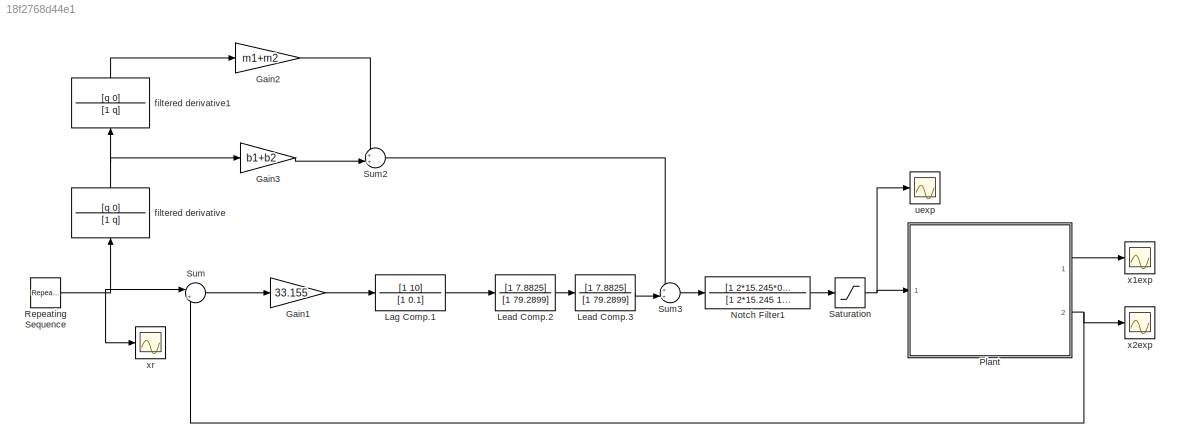
MODEL slx_18f2768d44e1
KIND model
CONFIG AbsTol = auto
CONFIG EnableMultiTasking = on
CONFIG FixedStep = 0.001
CONFIG MaxStep = auto
CONFIG MinStep = auto
CONFIG RelTol = 1e-3
CONFIG SampleTimeConstraint = Unconstrained
CONFIG SolverName = ode1
CONFIG StartTime = 0.0
CONFIG StopTime = inf
BLOCK [Gain] Gain1
  Gain = 33.155
BLOCK [Gain] Gain2
  Gain = m1+m2
BLOCK [Gain] Gain3
  Gain = b1+b2
BLOCK [TransferFcn] Lag Comp.1
  Denominator = [1 0.1]
  Numerator = [1 10]
BLOCK [TransferFcn] Lead Comp.2
  Denominator = [1 79.2899]
  Numerator = [1 7.8825]
BLOCK [TransferFcn] Lead Comp.3
  Denominator = [1 79.2899]
  Numerator = [1 7.8825]
BLOCK [TransferFcn] Notch Filter1
  Denominator = [1 2*15.245 15.245^2]
  Numerator = [1 2*15.245*0.707 15.245^2]
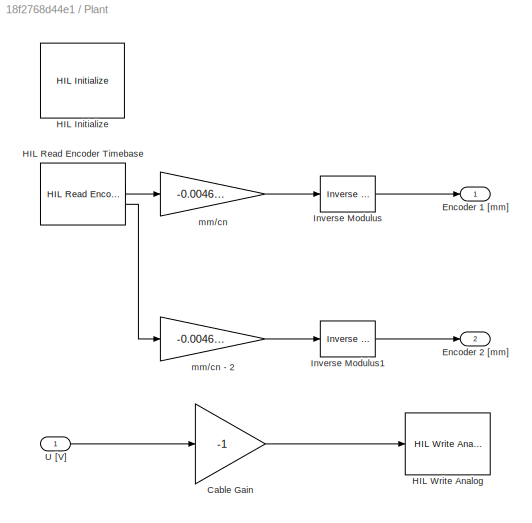
BLOCK [SubSystem] Plant
  Ports = [1, 2]
  RequestExecContextInheritance = off
BLOCK [Gain] Plant/Cable Gain
  Gain = -1
BLOCK [Outport] Plant/Encoder 1 [mm]
BLOCK [Outport] Plant/Encoder 2 [mm]
  Port = 2
BLOCK [Reference] Plant/HIL Initialize  REF=quarc_library/Data Acquisition/Generic/Configuration/HIL Initialize
  AttributesFormatString = %<object_name> (%<board_type>-%<board_number>)
  Ports = []
  Priority = -99
  SourceBlock = quarc_library/Data Acquisition/Generic/Configuration/HIL Initialize
  SourceProductName = QUARC Targets
  SourceType = HIL Initialize
  UserDataPersistent = on
BLOCK [Reference] Plant/HIL Read Encoder Timebase  REF=quarc_library/Data Acquisition/Generic/Timebases/HIL Read Encoder
Timebase
  AttributesFormatString = (%<object_name>)
  Ports = [0, 2]
  SourceBlock = quarc_library/Data Acquisition/Generic/Timebases/HIL Read Encoder\nTimebase
  SourceProductName = QUARC Targets
  SourceType = HIL Read Encoder Timebase
  UserDataPersistent = on
BLOCK [Reference] Plant/HIL Write Analog  REF=quarc_library/Data Acquisition/Generic/Immediate I//O/HIL Write Analog
  AttributesFormatString = (%<object_name>)
  Ports = [1]
  SourceBlock = quarc_library/Data Acquisition/Generic/Immediate I//O/HIL Write Analog
  SourceProductName = QUARC Targets
  SourceType = HIL Write Analog
  Tag = unassigned
  UserDataPersistent = on
BLOCK [Reference] Plant/Inverse Modulus  REF=quarc_library/Discontinuities/Inverse
Modulus
  Ports = [1, 1]
  SourceBlock = quarc_library/Discontinuities/Inverse\nModulus
  SourceProductName = QUARC Targets
  SourceType = Inverse Modulus
BLOCK [Reference] Plant/Inverse Modulus1  REF=quarc_library/Discontinuities/Inverse
Modulus
  Ports = [1, 1]
  SourceBlock = quarc_library/Discontinuities/Inverse\nModulus
  SourceProductName = QUARC Targets
  SourceType = Inverse Modulus
BLOCK [Inport] Plant/U [V]
BLOCK [Gain] Plant/mm//cn
  Gain = -0.0046592
BLOCK [Gain] Plant/mm//cn - 2
  Gain = -0.0046592
BLOCK [Reference] Repeating Sequence  REF=simulink/Sources/Repeating
Sequence
  Ports = [0, 1]
  SourceBlock = simulink/Sources/Repeating\nSequence
  SourceProductBaseCode = SL
  SourceType = Repeating table
BLOCK [Saturate] Saturation
  LowerLimit = -8
  UpperLimit = 8
BLOCK [Sum] Sum
  Inputs = |+-
  Ports = [2, 1]
BLOCK [Sum] Sum2
  Inputs = ++|
  Ports = [2, 1]
BLOCK [Sum] Sum3
  Inputs = ++|
  Ports = [2, 1]
BLOCK [TransferFcn] filtered derivative
  Denominator = [1 q]
  NameLocation = left
  Numerator = [q 0]
BLOCK [TransferFcn] filtered derivative1
  Denominator = [1 q]
  NameLocation = left
  Numerator = [q 0]
BLOCK [Scope] uexp
  Floating = off
  NumInputPorts = 1
  Ports = [1]
  ScopeSpecificationString = Simulink.scopes.TimeScopeBlockCfg('CurrentConfiguration', extmgr.ConfigurationSet(extmgr.Configuration('Core','General UI',true),extmgr.Configuration('Core','Source UI',true),extmgr.Configuration('Sources','WiredSimulink',true,'DataLoggingVariableName','uexp','DataLogging',true,'DataLoggingSaveFormat','Array'),extmgr.Configuration('Visuals','Time Domain',true,'SerializedDisplays',{struct('MinYLimR...<+1420ch>
BLOCK [Scope] x1exp
  Floating = off
  NumInputPorts = 1
  Ports = [1]
  ScopeSpecificationString = Simulink.scopes.TimeScopeBlockCfg('CurrentConfiguration', extmgr.ConfigurationSet(extmgr.Configuration('Core','General UI',true),extmgr.Configuration('Core','Source UI',true),extmgr.Configuration('Sources','WiredSimulink',true,'DataLoggingVariableName','x1exp','DataLogging',true,'DataLoggingSaveFormat','Array'),extmgr.Configuration('Visuals','Time Domain',true,'SerializedDisplays',{struct('MinYLim...<+1476ch>
BLOCK [Scope] x2exp
  Floating = off
  NumInputPorts = 1
  Ports = [1]
  ScopeSpecificationString = Simulink.scopes.TimeScopeBlockCfg('CurrentConfiguration', extmgr.ConfigurationSet(extmgr.Configuration('Core','General UI',true),extmgr.Configuration('Core','Source UI',true),extmgr.Configuration('Sources','WiredSimulink',true,'DataLogging',true,'DataLoggingVariableName','x2exp','DataLoggingSaveFormat','Array'),extmgr.Configuration('Visuals','Time Domain',true,'SerializedDisplays',{struct('MinYLim...<+1468ch>
BLOCK [Scope] xr
  Floating = off
  NumInputPorts = 1
  Ports = [1]
  ScopeSpecificationString = Simulink.scopes.TimeScopeBlockCfg('CurrentConfiguration', extmgr.ConfigurationSet(extmgr.Configuration('Core','General UI',true),extmgr.Configuration('Core','Source UI',true),extmgr.Configuration('Sources','WiredSimulink',true,'DataLogging',true,'DataLoggingVariableName','xrexp','DataLoggingSaveFormat','Array'),extmgr.Configuration('Visuals','Time Domain',true,'SerializedDisplays',{struct('MinYLim...<+1409ch>
LINE Gain1:1 -> Lag Comp.1:1
LINE Gain2:1 -> Sum2:1
LINE Gain3:1 -> Sum2:2
LINE Lag Comp.1:1 -> Lead Comp.2:1
LINE Lead Comp.2:1 -> Lead Comp.3:1
LINE Lead Comp.3:1 -> Sum3:2
LINE Notch Filter1:1 -> Saturation:1
LINE Plant/Cable Gain:1 -> Plant/HIL Write Analog:1
LINE Plant/HIL Read Encoder Timebase:1 -> Plant/mm//cn:1
LINE Plant/HIL Read Encoder Timebase:2 -> Plant/mm//cn - 2:1
LINE Plant/Inverse Modulus1:1 -> Plant/Encoder 2 [mm]:1
LINE Plant/Inverse Modulus:1 -> Plant/Encoder 1 [mm]:1
LINE Plant/U [V]:1 -> Plant/Cable Gain:1
LINE Plant/mm//cn - 2:1 -> Plant/Inverse Modulus1:1
LINE Plant/mm//cn:1 -> Plant/Inverse Modulus:1
LINE Plant:1 -> x1exp:1
NET Plant:2 -> Sum:2, x2exp:1
NET Repeating Sequence:1 -> Sum:1, filtered derivative:1, xr:1
NET Saturation:1 -> Plant:1, uexp:1
LINE Sum2:1 -> Sum3:1
LINE Sum3:1 -> Notch Filter1:1
LINE Sum:1 -> Gain1:1
LINE filtered derivative1:1 -> Gain2:1
NET filtered derivative:1 -> Gain3:1, filtered derivative1:1
note: NET lines group one-source signal fan-out (src -> all destinations, sorted); 1:1 wires keep LINE
